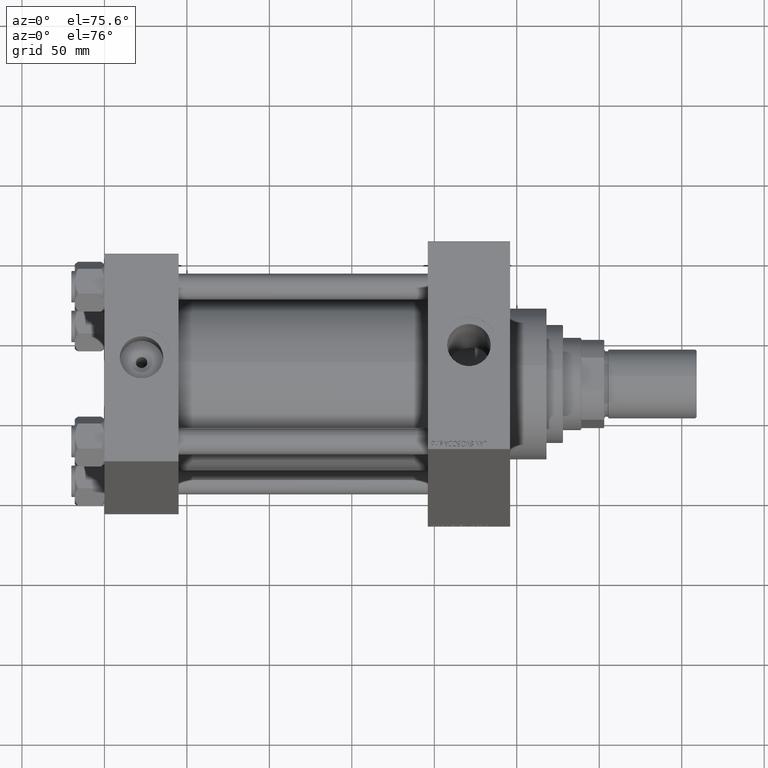
[diagram: clean part render]
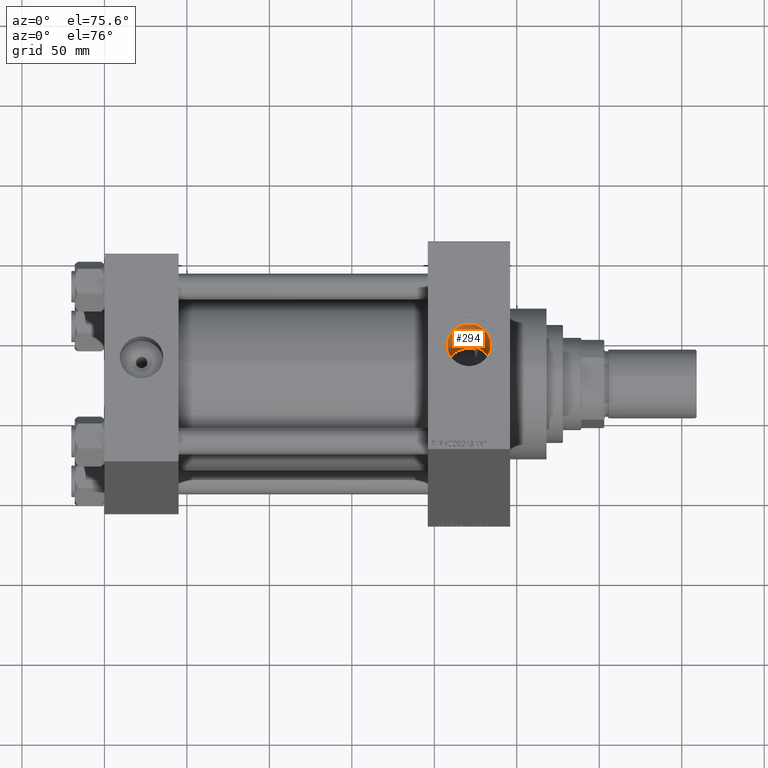
[diagram: same view with one face highlighted and labeled with its STEP entity id]
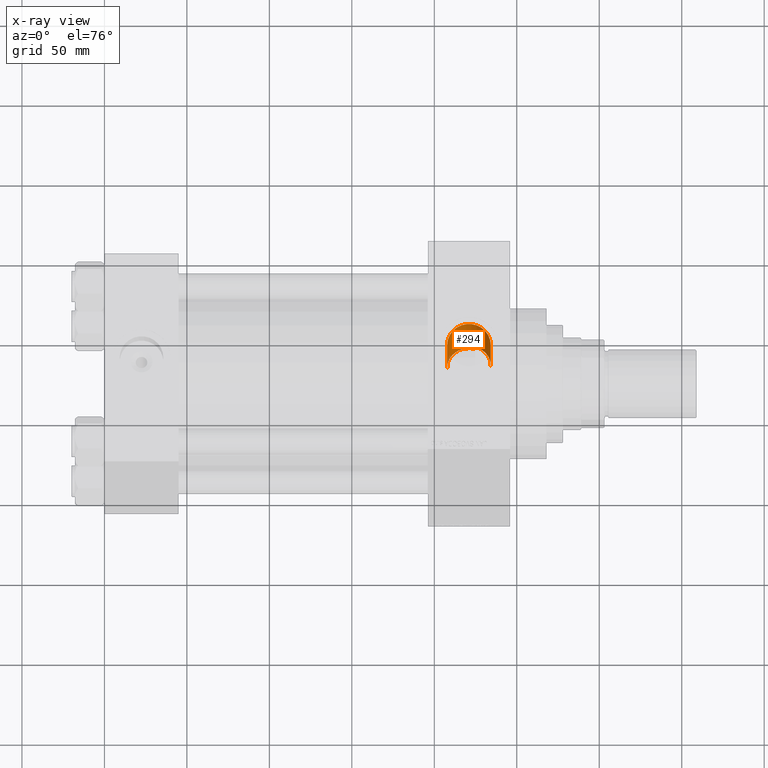
[diagram: x-ray of the same camera — body ghosted, the highlighted face saturated]
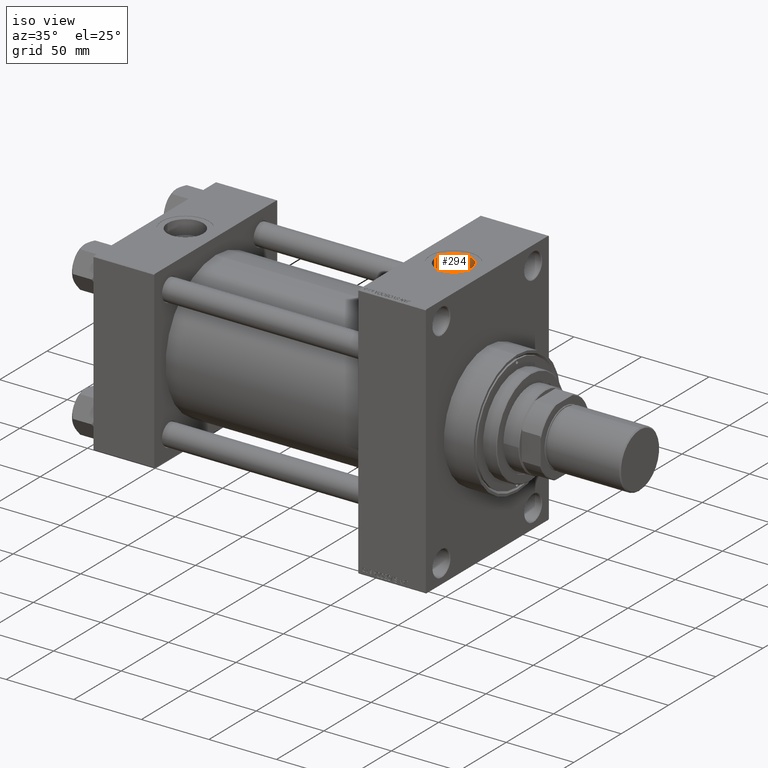
[diagram: same view with one face highlighted and labeled with its STEP entity id]
A machine part, auxiliary view. The second image highlights one B-rep face of the part: STEP entity #294.
The next image is the same camera in x-ray: the body ghosted, the highlighted face saturated — about 2% of this face is hidden behind the body in this view.
A second angle (iso view) of the same face is appended — the face is thin or edge-on in the first view.
In plain terms, the highlighted cylindrical surface (edge-blend (fillet) strip) has radius 13.22 mm, axis along (0, 0, -1).
Its self-contained STEP definition (entity closure, byte-faithful):
#294 = ADVANCED_FACE ( 'NONE', ( #24795 ), #13051, .F. ) ;
#1242 = CARTESIAN_POINT ( 'NONE',  ( 217.6161393418149430, 12.82059544320183875, 35.77248578963132530 ) ) ;
#1975 = CARTESIAN_POINT ( 'NONE',  ( 222.2169889944972567, 13.17384767058950246, 35.64338070116272661 ) ) ;
#3010 = CARTESIAN_POINT ( 'NONE',  ( 220.9999999999999716, 0.000000000000000000, 117.7999999999999545 ) ) ;
#4073 = CARTESIAN_POINT ( 'NONE',  ( 229.6671844818739032, 9.988618730331593198, 41.56733220482828273 ) ) ;
#4315 = CARTESIAN_POINT ( 'NONE',  ( 225.4277657072452428, 12.47707755947818775, 40.88924255936937158 ) ) ;
#4786 = CARTESIAN_POINT ( 'NONE',  ( 229.1227174788367620, 10.43618952212769457, 41.45722565518246228 ) ) ;
#4920 = CARTESIAN_POINT ( 'NONE',  ( 208.3778971728958425, 4.062892629112901943, 37.79548799711346163 ) ) ;
#5086 = CARTESIAN_POINT ( 'NONE',  ( 234.2199999999999704, 5.235365066362932155E-15, 42.75000000000000000 ) ) ;
#5332 = VECTOR ( 'NONE', #14609, 1000.000000000000000 ) ;
#5401 = CARTESIAN_POINT ( 'NONE',  ( 211.1862536335408436, 8.872148406854309499, 36.95190922194039729 ) ) ;
#5639 = CARTESIAN_POINT ( 'NONE',  ( 216.6411868225753778, 12.52307552529215151, 35.87982703132361451 ) ) ;
#5868 = VECTOR ( 'NONE', #18530, 1000.000000000000000 ) ;
#7388 = VERTEX_POINT ( 'NONE', #33968 ) ;
#7750 = CARTESIAN_POINT ( 'NONE',  ( 224.7400000000000091, 12.67993690836038567, 40.82623788692757216 ) ) ;
#8222 = CARTESIAN_POINT ( 'NONE',  ( 232.3681678082568851, 6.757087634520138053, 42.21369697903651996 ) ) ;
#8423 = ORIENTED_EDGE ( 'NONE', *, *, #30310, .F. ) ;
#8460 = CARTESIAN_POINT ( 'NONE',  ( 230.6858958810278750, 9.024595134817779751, 41.78957529832799622 ) ) ;
#8516 = LINE ( 'NONE', #22719, #35544 ) ;
#8672 = B_SPLINE_CURVE_WITH_KNOTS ( 'NONE', 3,
 ( #12272, #26472, #41417, #42128, #38470, #4920, #19833, #42849, #46282, #42612, #39193, #5401, #20807, #35265, #38713, #27921, #20317, #12987, #28163, #5639, #1242, #9557, #24000, #24486, #23764, #1975, #9321, #20074, #20561, #24244 ),
 .UNSPECIFIED., .F., .F.,
 ( 4, 2, 2, 2, 2, 2, 2, 2, 2, 2, 2, 2, 2, 2, 4 ),
 ( 0.04166013637941432673, 0.04319771166362021408, 0.04473528694782610143, 0.04781043751623787613, 0.04934801280044377042, 0.05088558808464965777, 0.05242316336885555206, 0.05396073865306143941, 0.05549831393726732676, 0.05703588922147322104, 0.06011103978988499574, 0.06164861507409089003, 0.06318619035829678432, 0.06472376564250267861, 0.06626134092670857290 ),
 .UNSPECIFIED. ) ;
#8702 = CARTESIAN_POINT ( 'NONE',  ( 233.7498696806301268, 3.512400709947649968, 42.60688462453909864 ) ) ;
#9321 = CARTESIAN_POINT ( 'NONE',  ( 222.7262910150044206, 13.11687709635734223, 35.66449319161085185 ) ) ;
#9557 = CARTESIAN_POINT ( 'NONE',  ( 219.1279962358461830, 13.09681056689220924, 35.67188185037126402 ) ) ;
#10279 = EDGE_CURVE ( 'NONE', #12502, #15407, #33207, .T. ) ;
#10864 = CARTESIAN_POINT ( 'NONE',  ( 224.7400000000000091, 12.67993690836038567, 40.82623788692757216 ) ) ;
#11374 = VERTEX_POINT ( 'NONE', #38335 ) ;
#12272 = CARTESIAN_POINT ( 'NONE',  ( 207.7799999999999727, 4.670198144118042837E-15, 38.00000000000000000 ) ) ;
#12301 = CIRCLE ( 'NONE', #47486, 13.22000000000000952 ) ;
#12502 = VERTEX_POINT ( 'NONE', #35875 ) ;
#12987 = CARTESIAN_POINT ( 'NONE',  ( 214.7708974169249245, 11.67150488739252623, 36.16418007451799355 ) ) ;
#13051 = CYLINDRICAL_SURFACE ( 'NONE', #16647, 13.22000000000000952 ) ;
#14104 = CARTESIAN_POINT ( 'NONE',  ( 207.7799999999999727, 4.670198144118042837E-15, 38.00000000000000000 ) ) ;
#14609 = DIRECTION ( 'NONE',  ( 0.000000000000000000, 0.000000000000000000, -1.000000000000000000 ) ) ;
#15116 = LINE ( 'NONE', #30521, #5868 ) ;
#15407 = VERTEX_POINT ( 'NONE', #5086 ) ;
#16047 = CARTESIAN_POINT ( 'NONE',  ( 233.3113288498327051, 4.868756459318203333, 42.47724650916213562 ) ) ;
#16295 = CARTESIAN_POINT ( 'NONE',  ( 228.8392309499369333, 10.65085741936021080, 41.40248309854266040 ) ) ;
#16483 = ORIENTED_EDGE ( 'NONE', *, *, #39081, .F. ) ;
#16647 = AXIS2_PLACEMENT_3D ( 'NONE', #3010, #16963, #47317 ) ;
#16963 = DIRECTION ( 'NONE',  ( 0.000000000000000000, 0.000000000000000000, -1.000000000000000000 ) ) ;
#17920 = ORIENTED_EDGE ( 'NONE', *, *, #29118, .T. ) ;
#18530 = DIRECTION ( 'NONE',  ( 0.000000000000000000, 0.000000000000000000, -1.000000000000000000 ) ) ;
#19000 = CARTESIAN_POINT ( 'NONE',  ( 226.0879043388673324, 12.22198265844278886, 40.96689205292911140 ) ) ;
#19468 = CARTESIAN_POINT ( 'NONE',  ( 233.9920876238891196, 2.469797748352710265, 42.68003640910876584 ) ) ;
#19700 = CARTESIAN_POINT ( 'NONE',  ( 231.7881170177278705, 7.649199120474181157, 42.06109021706770790 ) ) ;
#19833 = CARTESIAN_POINT ( 'NONE',  ( 208.7276034401946561, 5.021107990086665751, 37.67826336039708934 ) ) ;
#20008 = ORIENTED_EDGE ( 'NONE', *, *, #27655, .T. ) ;
#20074 = CARTESIAN_POINT ( 'NONE',  ( 223.7394249595122631, 12.94326451559380153, 35.72786647778972480 ) ) ;
#20317 = CARTESIAN_POINT ( 'NONE',  ( 213.8947888654770679, 11.15982616624255996, 36.32533863211517655 ) ) ;
#20561 = CARTESIAN_POINT ( 'NONE',  ( 224.2465992284542722, 12.82546751304064792, 35.77053558263883559 ) ) ;
#20807 = CARTESIAN_POINT ( 'NONE',  ( 211.5346530381058301, 9.243211865870209820, 36.86048209934023845 ) ) ;
#21184 = EDGE_LOOP ( 'NONE', ( #39855, #16483, #24491, #17920, #8423, #20008 ) ) ;
#22719 = CARTESIAN_POINT ( 'NONE',  ( 207.7799999999999727, 0.000000000000000000, 117.7999999999999545 ) ) ;
#23630 = CARTESIAN_POINT ( 'NONE',  ( 234.1627215507657525, 1.419340817186895753, 42.73218467206118731 ) ) ;
#23764 = CARTESIAN_POINT ( 'NONE',  ( 221.1929245059120035, 13.22853373566559654, 35.62312093936006363 ) ) ;
#24000 = CARTESIAN_POINT ( 'NONE',  ( 219.6429904835857201, 13.16039151796706719, 35.64835659901554976 ) ) ;
#24244 = CARTESIAN_POINT ( 'NONE',  ( 224.7400000000000091, 12.67993690836038567, 35.82204907595320265 ) ) ;
#24486 = CARTESIAN_POINT ( 'NONE',  ( 220.6781624700284681, 13.22625420661951345, 35.62397272594166253 ) ) ;
#24491 = ORIENTED_EDGE ( 'NONE', *, *, #29186, .T. ) ;
#24795 = FACE_OUTER_BOUND ( 'NONE', #21184, .T. ) ;
#26348 = CARTESIAN_POINT ( 'NONE',  ( 233.6496243838042801, 3.857681275829297540, 42.57693607211756870 ) ) ;
#26472 = CARTESIAN_POINT ( 'NONE',  ( 207.7799999999999443, 0.5123942091390825126, 38.00000000000000000 ) ) ;
#27064 = CARTESIAN_POINT ( 'NONE',  ( 227.9652939437245038, 11.25862793121220484, 41.24295429618411646 ) ) ;
#27655 = EDGE_CURVE ( 'NONE', #48406, #15407, #32790, .T. ) ;
#27921 = CARTESIAN_POINT ( 'NONE',  ( 213.4737087384339986, 10.88020985411995767, 36.41044846182738581 ) ) ;
#28163 = CARTESIAN_POINT ( 'NONE',  ( 215.2275989359078494, 11.90429981927680103, 36.08787882260793367 ) ) ;
#29118 = EDGE_CURVE ( 'NONE', #30523, #11374, #8672, .T. ) ;
#29186 = EDGE_CURVE ( 'NONE', #7388, #30523, #8516, .T. ) ;
#30258 = CARTESIAN_POINT ( 'NONE',  ( 234.2199999999999704, 1.618983068472802532E-15, 117.7999999999999545 ) ) ;
#30271 = CARTESIAN_POINT ( 'NONE',  ( 231.9906410470004516, 7.355221410213278688, 42.11359832578121853 ) ) ;
#30310 = EDGE_CURVE ( 'NONE', #48406, #11374, #15116, .T. ) ;
#30507 = CARTESIAN_POINT ( 'NONE',  ( 229.9292914793964542, 9.754948885942496872, 41.62290027704881368 ) ) ;
#30521 = CARTESIAN_POINT ( 'NONE',  ( 224.7400000000000091, 12.67993690836038567, 117.7999999999999545 ) ) ;
#30523 = VERTEX_POINT ( 'NONE', #14104 ) ;
#32790 = B_SPLINE_CURVE_WITH_KNOTS ( 'NONE', 3,
 ( #7750, #4315, #19000, #42240, #27064, #16295, #4786, #4073, #30507, #8460, #33945, #19700, #30271, #8222, #42004, #34652, #16047, #26348, #8702, #45197, #19468, #23630, #38101, #34411 ),
 .UNSPECIFIED., .F., .F.,
 ( 4, 2, 2, 2, 2, 2, 2, 2, 2, 2, 2, 4 ),
 ( 0.000000000000000000, 0.002127714298774675307, 0.004255428597549350614, 0.005319285746936654874, 0.006383142896323960001, 0.008510857195098564185, 0.009574714344485890996, 0.01063857149387321607, 0.01276628579264786623, 0.01383014294203518957, 0.01489400009142251465, 0.01702171439019715266 ),
 .UNSPECIFIED. ) ;
#33147 = DIRECTION ( 'NONE',  ( -0.000000000000000000, -0.000000000000000000, -1.000000000000000000 ) ) ;
#33207 = LINE ( 'NONE', #30258, #5332 ) ;
#33945 = CARTESIAN_POINT ( 'NONE',  ( 231.1508856579517328, 8.498775455946647739, 41.90066282866281711 ) ) ;
#33968 = CARTESIAN_POINT ( 'NONE',  ( 207.7799999999999727, 0.000000000000000000, 94.79999999999996874 ) ) ;
#34411 = CARTESIAN_POINT ( 'NONE',  ( 234.2199999999999704, 5.235365066362932155E-15, 42.75000000000000000 ) ) ;
#34652 = CARTESIAN_POINT ( 'NONE',  ( 233.0344437705743985, 5.516867045286181437, 42.39720841868733459 ) ) ;
#35265 = CARTESIAN_POINT ( 'NONE',  ( 212.2767444913755810, 9.946585948839709701, 36.67693463411970356 ) ) ;
#35544 = VECTOR ( 'NONE', #45002, 1000.000000000000000 ) ;
#35875 = CARTESIAN_POINT ( 'NONE',  ( 234.2199999999999704, 1.618983068472802926E-15, 94.79999999999996874 ) ) ;
#36108 = CARTESIAN_POINT ( 'NONE',  ( 220.9999999999999716, 0.000000000000000000, 94.79999999999996874 ) ) ;
#38101 = CARTESIAN_POINT ( 'NONE',  ( 234.2199999999999704, 0.7128280605864665276, 42.75000000000000000 ) ) ;
#38335 = CARTESIAN_POINT ( 'NONE',  ( 224.7400000000000091, 12.67993690836038567, 35.82204907595320265 ) ) ;
#38470 = CARTESIAN_POINT ( 'NONE',  ( 208.0207089073833231, 2.563288280031349231, 37.91676483506162043 ) ) ;
#38713 = CARTESIAN_POINT ( 'NONE',  ( 212.6646875080168400, 10.27358711865540997, 36.58624237847440241 ) ) ;
#39081 = EDGE_CURVE ( 'NONE', #7388, #12502, #12301, .T. ) ;
#39193 = CARTESIAN_POINT ( 'NONE',  ( 210.5365498440031899, 8.095730104901406321, 37.12974234449202982 ) ) ;
#39855 = ORIENTED_EDGE ( 'NONE', *, *, #10279, .F. ) ;
#41417 = CARTESIAN_POINT ( 'NONE',  ( 207.8096871343878718, 1.024765291550094437, 37.98964051294835542 ) ) ;
#42004 = CARTESIAN_POINT ( 'NONE',  ( 232.5441554628929168, 6.451719876449947932, 42.26153051605046329 ) ) ;
#42128 = CARTESIAN_POINT ( 'NONE',  ( 207.9296438586279976, 2.049460351701853700, 37.94815730009316468 ) ) ;
#42240 = CARTESIAN_POINT ( 'NONE',  ( 227.3566742675306784, 11.61276551564070658, 41.14373320031093328 ) ) ;
#42612 = CARTESIAN_POINT ( 'NONE',  ( 210.2346256052195486, 7.689782515989666223, 37.21631209127709639 ) ) ;
#42849 = CARTESIAN_POINT ( 'NONE',  ( 209.4196655872704014, 6.397496821543488643, 37.46048315550976326 ) ) ;
#45002 = DIRECTION ( 'NONE',  ( 0.000000000000000000, 0.000000000000000000, -1.000000000000000000 ) ) ;
#45197 = CARTESIAN_POINT ( 'NONE',  ( 233.9210219195440743, 2.818391061395463471, 42.65841356615450053 ) ) ;
#46282 = CARTESIAN_POINT ( 'NONE',  ( 209.6766881679797336, 6.841684745575792981, 37.38151937335765496 ) ) ;
#47317 = DIRECTION ( 'NONE',  ( -1.000000000000000000, 0.000000000000000000, 0.000000000000000000 ) ) ;
#47486 = AXIS2_PLACEMENT_3D ( 'NONE', #36108, #33147, #48077 ) ;
#48077 = DIRECTION ( 'NONE',  ( 1.000000000000000000, 0.000000000000000000, 0.000000000000000000 ) ) ;
#48406 = VERTEX_POINT ( 'NONE', #10864 ) ;